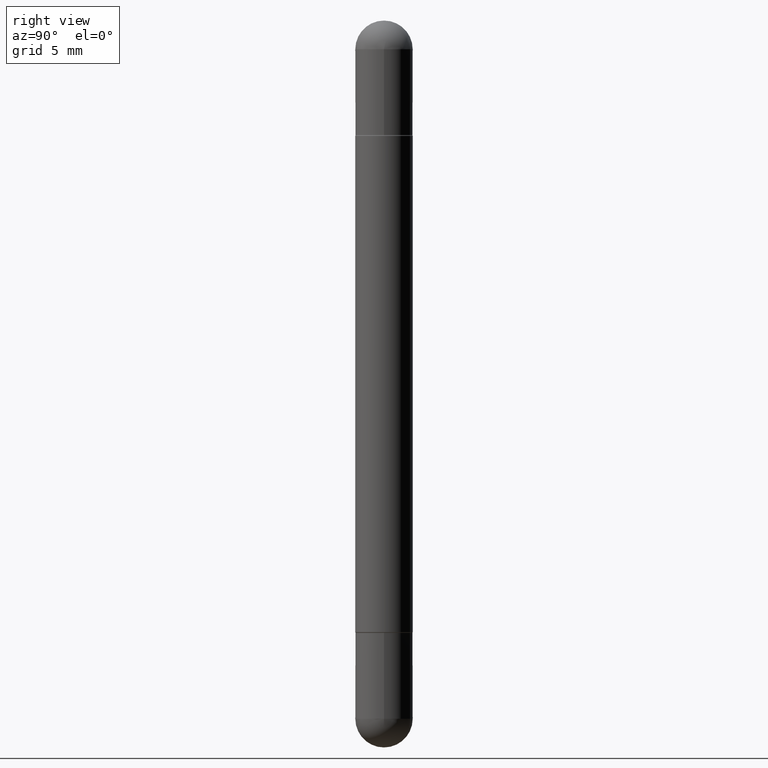
[diagram: clean part render]
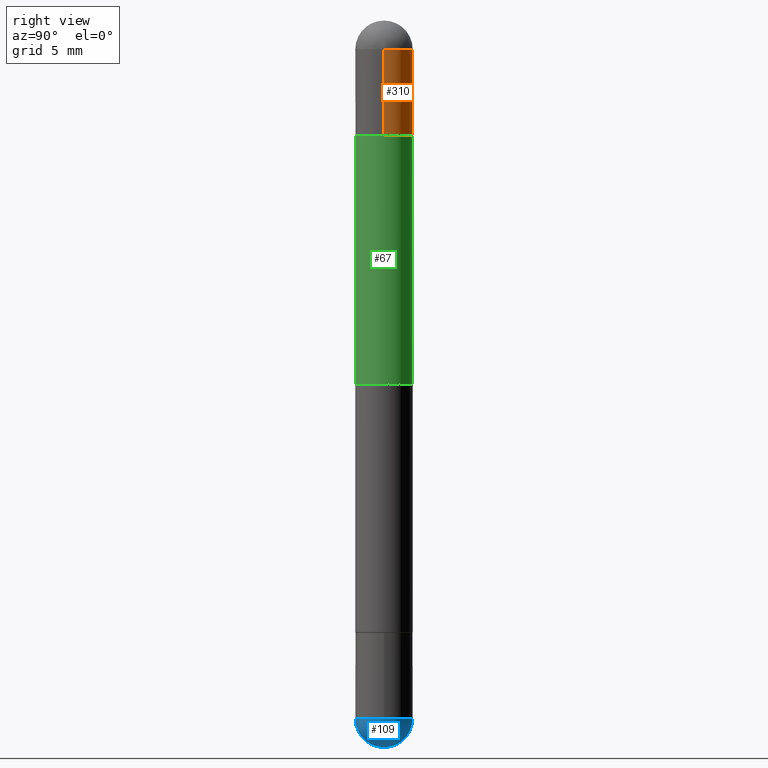
[diagram: same view with three faces highlighted in distinct colors, each labeled with its STEP entity id]
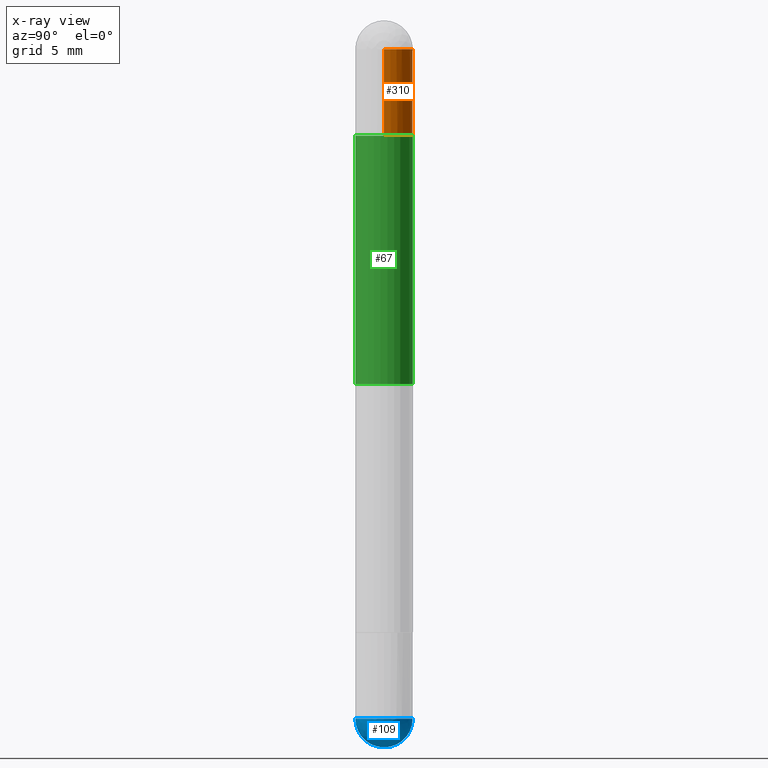
[diagram: x-ray of the same camera — body ghosted, the three highlighted faces saturated]
A machine part, right view with three faces highlighted in distinct colors.
The next image is the same camera in x-ray (body ghosted, the three faces saturated) — at least one of them is partly hidden behind the body in this view.
Their STEP definitions:

[orange] entity #310 — the highlighted cylindrical surface (edge-blend (fillet) strip) has radius 1.4999 mm, axis along (-0, 0, -1).
#20 = ORIENTED_EDGE ( 'NONE', *, *, #247, .F. ) ;
#37 = DIRECTION ( 'NONE',  ( -2.445468806185136597E-29, 3.491481338843145583E-15, -1.000000000000000000 ) ) ;
#60 = CARTESIAN_POINT ( 'NONE',  ( 3.081046148912652946E-29, -4.398917338808479031E-15, -0.2362000000000003264 ) ) ;
#99 = FACE_OUTER_BOUND ( 'NONE', #627, .T. ) ;
#141 = CARTESIAN_POINT ( 'NONE',  ( 3.514260947928350449E-29, -5.017433257984542594E-15, -0.05905000000000028976 ) ) ;
#143 = DIRECTION ( 'NONE',  ( 1.000000000000000000, -6.982962677686270655E-15, 0.000000000000000000 ) ) ;
#151 = EDGE_CURVE ( 'NONE', #324, #250, #439, .T. ) ;
#186 = ORIENTED_EDGE ( 'NONE', *, *, #773, .F. ) ;
#187 = AXIS2_PLACEMENT_3D ( 'NONE', #716, #700, #143 ) ;
#204 = ORIENTED_EDGE ( 'NONE', *, *, #486, .T. ) ;
#210 = CYLINDRICAL_SURFACE ( 'NONE', #631, 0.05905000000000001914 ) ;
#212 = DIRECTION ( 'NONE',  ( -2.445468806185136877E-29, 3.491481338843145188E-15, -1.000000000000000000 ) ) ;
#220 = CARTESIAN_POINT ( 'NONE',  ( -0.05905000000000001914, 4.051124067684090655E-16, -1.496100000000000207 ) ) ;
#245 = CARTESIAN_POINT ( 'NONE',  ( 0.05905000000000001914, -4.811261284925853162E-15, -0.2362000000000003264 ) ) ;
#247 = EDGE_CURVE ( 'NONE', #250, #592, #467, .T. ) ;
#250 = VERTEX_POINT ( 'NONE', #724 ) ;
#258 = EDGE_CURVE ( 'NONE', #682, #463, #605, .T. ) ;
#289 = VECTOR ( 'NONE', #793, 39.37007874015748143 ) ;
#310 = ADVANCED_FACE ( 'NONE', ( #99 ), #210, .T. ) ;
#313 = ORIENTED_EDGE ( 'NONE', *, *, #258, .T. ) ;
#324 = VERTEX_POINT ( 'NONE', #601 ) ;
#339 = CARTESIAN_POINT ( 'NONE',  ( 0.05905000000000001914, -4.123439461173741806E-16, -1.496100000000000207 ) ) ;
#387 = CIRCLE ( 'NONE', #738, 0.05905000000000001914 ) ;
#439 = CIRCLE ( 'NONE', #187, 0.05905000000000001914 ) ;
#463 = VERTEX_POINT ( 'NONE', #245 ) ;
#467 = LINE ( 'NONE', #220, #654 ) ;
#486 = EDGE_CURVE ( 'NONE', #463, #592, #604, .T. ) ;
#507 = DIRECTION ( 'NONE',  ( 1.000000000000000000, -6.982962677686270655E-15, 0.000000000000000000 ) ) ;
#526 = AXIS2_PLACEMENT_3D ( 'NONE', #60, #745, #507 ) ;
#543 = DIRECTION ( 'NONE',  ( 2.445468806185136597E-29, -3.491481338843145583E-15, 1.000000000000000000 ) ) ;
#592 = VERTEX_POINT ( 'NONE', #696 ) ;
#600 = CARTESIAN_POINT ( 'NONE',  ( 0.05905000000000001914, -5.120519244513884944E-15, -0.05905000000000028976 ) ) ;
#601 = CARTESIAN_POINT ( 'NONE',  ( 4.123439461174084467E-16, 0.05904999999999487742, -0.05905000000000008159 ) ) ;
#604 = CIRCLE ( 'NONE', #526, 0.05905000000000001914 ) ;
#605 = LINE ( 'NONE', #339, #289 ) ;
#607 = DIRECTION ( 'NONE',  ( 1.000000000000000000, -6.982962677686266711E-15, 0.000000000000000000 ) ) ;
#627 = EDGE_LOOP ( 'NONE', ( #20, #784, #186, #313, #204 ) ) ;
#631 = AXIS2_PLACEMENT_3D ( 'NONE', #651, #37, #607 ) ;
#651 = CARTESIAN_POINT ( 'NONE',  ( 0.000000000000000000, 0.000000000000000000, -1.496100000000000207 ) ) ;
#654 = VECTOR ( 'NONE', #212, 39.37007874015748143 ) ;
#682 = VERTEX_POINT ( 'NONE', #600 ) ;
#696 = CARTESIAN_POINT ( 'NONE',  ( -0.05905000000000001914, -4.303062891628101254E-15, -0.2362000000000003264 ) ) ;
#700 = DIRECTION ( 'NONE',  ( 2.445468806185136597E-29, -3.491481338843145583E-15, 1.000000000000000000 ) ) ;
#716 = CARTESIAN_POINT ( 'NONE',  ( 3.514260947928350449E-29, -5.017433257984542594E-15, -0.05905000000000028976 ) ) ;
#724 = CARTESIAN_POINT ( 'NONE',  ( -0.05905000000000001914, -4.303062891628101254E-15, -0.05905000000000028976 ) ) ;
#738 = AXIS2_PLACEMENT_3D ( 'NONE', #141, #543, #787 ) ;
#745 = DIRECTION ( 'NONE',  ( 2.445468806185136597E-29, -3.491481338843145583E-15, 1.000000000000000000 ) ) ;
#773 = EDGE_CURVE ( 'NONE', #682, #324, #387, .T. ) ;
#784 = ORIENTED_EDGE ( 'NONE', *, *, #151, .F. ) ;
#787 = DIRECTION ( 'NONE',  ( 1.000000000000000000, -6.982962677686270655E-15, 0.000000000000000000 ) ) ;
#793 = DIRECTION ( 'NONE',  ( -2.445468806185136877E-29, 3.491481338843145188E-15, -1.000000000000000000 ) ) ;

[blue] entity #109 — the highlighted spherical surface has radius 1.4999 mm.
#10 = VERTEX_POINT ( 'NONE', #435 ) ;
#24 = VERTEX_POINT ( 'NONE', #498 ) ;
#39 = DIRECTION ( 'NONE',  ( 6.982962677686266711E-15, 1.000000000000000000, 0.000000000000000000 ) ) ;
#69 = CARTESIAN_POINT ( 'NONE',  ( 3.514260947928350449E-29, -5.017433257984542594E-15, -1.437049999999999939 ) ) ;
#73 = AXIS2_PLACEMENT_3D ( 'NONE', #728, #157, #39 ) ;
#80 = SPHERICAL_SURFACE ( 'NONE', #759, 0.05905000000000025506 ) ;
#90 = EDGE_CURVE ( 'NONE', #10, #471, #542, .T. ) ;
#109 = ADVANCED_FACE ( 'NONE', ( #523 ), #80, .T. ) ;
#129 = DIRECTION ( 'NONE',  ( -2.445468806185136597E-29, 3.491481338843145583E-15, 1.000000000000000000 ) ) ;
#157 = DIRECTION ( 'NONE',  ( 1.000000000000000000, -6.982962677686265922E-15, 4.883557194083112340E-29 ) ) ;
#159 = AXIS2_PLACEMENT_3D ( 'NONE', #648, #249, #254 ) ;
#163 = CARTESIAN_POINT ( 'NONE',  ( -4.195754854663065087E-16, -0.05905000000000539678, -1.437049999999999716 ) ) ;
#181 = ORIENTED_EDGE ( 'NONE', *, *, #183, .F. ) ;
#183 = EDGE_CURVE ( 'NONE', #330, #10, #513, .T. ) ;
#221 = EDGE_CURVE ( 'NONE', #24, #471, #252, .T. ) ;
#249 = DIRECTION ( 'NONE',  ( -2.445468806185136597E-29, 3.491481338843145583E-15, 1.000000000000000000 ) ) ;
#252 = CIRCLE ( 'NONE', #73, 0.05905000000000025506 ) ;
#254 = DIRECTION ( 'NONE',  ( 1.000000000000000000, -6.982962677686270655E-15, 0.000000000000000000 ) ) ;
#293 = EDGE_LOOP ( 'NONE', ( #521, #675, #646, #181 ) ) ;
#309 = EDGE_CURVE ( 'NONE', #24, #330, #760, .T. ) ;
#316 = DIRECTION ( 'NONE',  ( 1.000000000000000000, -6.982962677686270655E-15, 0.000000000000000000 ) ) ;
#330 = VERTEX_POINT ( 'NONE', #163 ) ;
#347 = CARTESIAN_POINT ( 'NONE',  ( 3.183141170014464762E-29, -5.491615626124592102E-15, -1.437049999999999939 ) ) ;
#412 = AXIS2_PLACEMENT_3D ( 'NONE', #69, #129, #316 ) ;
#435 = CARTESIAN_POINT ( 'NONE',  ( 0.05905000000000001914, -5.120519244513884944E-15, -1.437049999999999939 ) ) ;
#471 = VERTEX_POINT ( 'NONE', #683 ) ;
#477 = DIRECTION ( 'NONE',  ( -1.000000000000000000, 7.105427357601001070E-15, -4.926315508542082329E-29 ) ) ;
#498 = CARTESIAN_POINT ( 'NONE',  ( 3.330070981488499955E-29, -5.694171829508798064E-15, -1.496100000000000207 ) ) ;
#513 = CIRCLE ( 'NONE', #412, 0.05905000000000001914 ) ;
#517 = CARTESIAN_POINT ( 'NONE',  ( 3.183141170014464762E-29, -5.491615626124592102E-15, -1.437049999999999939 ) ) ;
#521 = ORIENTED_EDGE ( 'NONE', *, *, #309, .F. ) ;
#523 = FACE_OUTER_BOUND ( 'NONE', #293, .T. ) ;
#542 = CIRCLE ( 'NONE', #159, 0.05905000000000001914 ) ;
#591 = AXIS2_PLACEMENT_3D ( 'NONE', #347, #477, #669 ) ;
#646 = ORIENTED_EDGE ( 'NONE', *, *, #90, .F. ) ;
#648 = CARTESIAN_POINT ( 'NONE',  ( 3.514260947928350449E-29, -5.017433257984542594E-15, -1.437049999999999939 ) ) ;
#669 = DIRECTION ( 'NONE',  ( -7.105427357601001070E-15, -1.000000000000000000, 0.000000000000000000 ) ) ;
#675 = ORIENTED_EDGE ( 'NONE', *, *, #221, .T. ) ;
#683 = CARTESIAN_POINT ( 'NONE',  ( 4.123439461174084467E-16, 0.05904999999999487742, -1.437050000000000161 ) ) ;
#704 = DIRECTION ( 'NONE',  ( 6.982962677686265922E-15, 1.000000000000000000, -4.626330217890349615E-15 ) ) ;
#728 = CARTESIAN_POINT ( 'NONE',  ( 3.183141170014464762E-29, -5.491615626124592102E-15, -1.437049999999999939 ) ) ;
#758 = DIRECTION ( 'NONE',  ( -1.000000000000000000, 6.982962677686265922E-15, -4.883557194083112340E-29 ) ) ;
#759 = AXIS2_PLACEMENT_3D ( 'NONE', #517, #758, #704 ) ;
#760 = CIRCLE ( 'NONE', #591, 0.05905000000000025506 ) ;

[green] entity #67 — the highlighted cylindrical surface (edge-blend (fillet) strip) has radius 1.4999 mm, axis along (-0, 0, -1).
#34 = CARTESIAN_POINT ( 'NONE',  ( -4.123439461173503176E-16, -0.05905000000000273225, -0.7480500000000001037 ) ) ;
#57 = DIRECTION ( 'NONE',  ( -6.982962677686265922E-15, -1.000000000000000000, -4.626330217890360659E-15 ) ) ;
#67 = ADVANCED_FACE ( 'NONE', ( #495 ), #170, .T. ) ;
#89 = VERTEX_POINT ( 'NONE', #261 ) ;
#101 = CARTESIAN_POINT ( 'NONE',  ( -4.123439461173447462E-16, -0.05905000000000460575, -0.2372000000000006048 ) ) ;
#116 = DIRECTION ( 'NONE',  ( -2.436217411608901481E-29, 3.504729862432993051E-15, -1.000000000000000000 ) ) ;
#125 = DIRECTION ( 'NONE',  ( -6.982962677686265922E-15, -1.000000000000000000, -3.469747663417765169E-15 ) ) ;
#126 = DIRECTION ( 'NONE',  ( -2.436217411608901762E-29, 3.504729862432993051E-15, -1.000000000000000000 ) ) ;
#137 = EDGE_CURVE ( 'NONE', #633, #233, #813, .T. ) ;
#142 = EDGE_CURVE ( 'NONE', #89, #633, #448, .T. ) ;
#153 = LINE ( 'NONE', #269, #161 ) ;
#161 = VECTOR ( 'NONE', #792, 39.37007874015748143 ) ;
#170 = CYLINDRICAL_SURFACE ( 'NONE', #301, 0.05905000000000010935 ) ;
#201 = CARTESIAN_POINT ( 'NONE',  ( 4.051124067684096571E-16, 0.05905000000000010935, -1.496099999999999985 ) ) ;
#225 = VECTOR ( 'NONE', #126, 39.37007874015748143 ) ;
#233 = VERTEX_POINT ( 'NONE', #34 ) ;
#255 = CARTESIAN_POINT ( 'NONE',  ( 3.066954099474445427E-29, -4.412104423816894062E-15, -0.2372000000000004105 ) ) ;
#261 = CARTESIAN_POINT ( 'NONE',  ( 4.051124067684410143E-16, 0.05904999999999580029, -0.2372000000000002162 ) ) ;
#269 = CARTESIAN_POINT ( 'NONE',  ( -4.123439461173747722E-16, -0.05905000000000010935, -1.496100000000000430 ) ) ;
#301 = AXIS2_PLACEMENT_3D ( 'NONE', #423, #116, #57 ) ;
#327 = CARTESIAN_POINT ( 'NONE',  ( 4.051124067684402255E-16, 0.05904999999999747951, -0.7480500000000001037 ) ) ;
#337 = ORIENTED_EDGE ( 'NONE', *, *, #142, .F. ) ;
#368 = VERTEX_POINT ( 'NONE', #101 ) ;
#423 = CARTESIAN_POINT ( 'NONE',  ( 0.000000000000000000, 0.000000000000000000, -1.496100000000000207 ) ) ;
#436 = ORIENTED_EDGE ( 'NONE', *, *, #137, .F. ) ;
#448 = LINE ( 'NONE', #201, #225 ) ;
#464 = EDGE_LOOP ( 'NONE', ( #337, #541, #598, #436 ) ) ;
#495 = FACE_OUTER_BOUND ( 'NONE', #464, .T. ) ;
#541 = ORIENTED_EDGE ( 'NONE', *, *, #635, .F. ) ;
#583 = DIRECTION ( 'NONE',  ( -0.000000000000000000, -0.000000000000000000, -1.000000000000000000 ) ) ;
#587 = DIRECTION ( 'NONE',  ( 2.436217411608901481E-29, -3.504729862432993051E-15, 1.000000000000000000 ) ) ;
#588 = DIRECTION ( 'NONE',  ( -1.000000000000000000, 0.000000000000000000, 0.000000000000000000 ) ) ;
#590 = AXIS2_PLACEMENT_3D ( 'NONE', #769, #583, #588 ) ;
#598 = ORIENTED_EDGE ( 'NONE', *, *, #701, .T. ) ;
#633 = VERTEX_POINT ( 'NONE', #327 ) ;
#635 = EDGE_CURVE ( 'NONE', #368, #89, #670, .T. ) ;
#670 = CIRCLE ( 'NONE', #788, 0.05905000000000020649 ) ;
#701 = EDGE_CURVE ( 'NONE', #368, #233, #153, .T. ) ;
#769 = CARTESIAN_POINT ( 'NONE',  ( 1.822412434754038989E-29, -2.621713173593000683E-15, -0.7480500000000001037 ) ) ;
#788 = AXIS2_PLACEMENT_3D ( 'NONE', #255, #587, #125 ) ;
#792 = DIRECTION ( 'NONE',  ( -2.436217411608901762E-29, 3.504729862432993051E-15, -1.000000000000000000 ) ) ;
#813 = CIRCLE ( 'NONE', #590, 0.05905000000000010935 ) ;